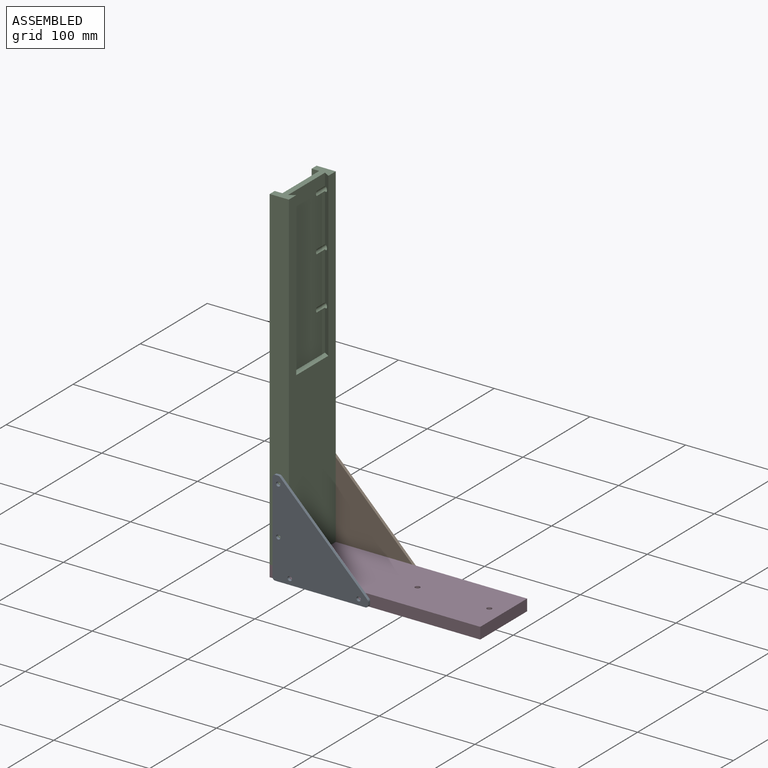
[diagram: assembled view]
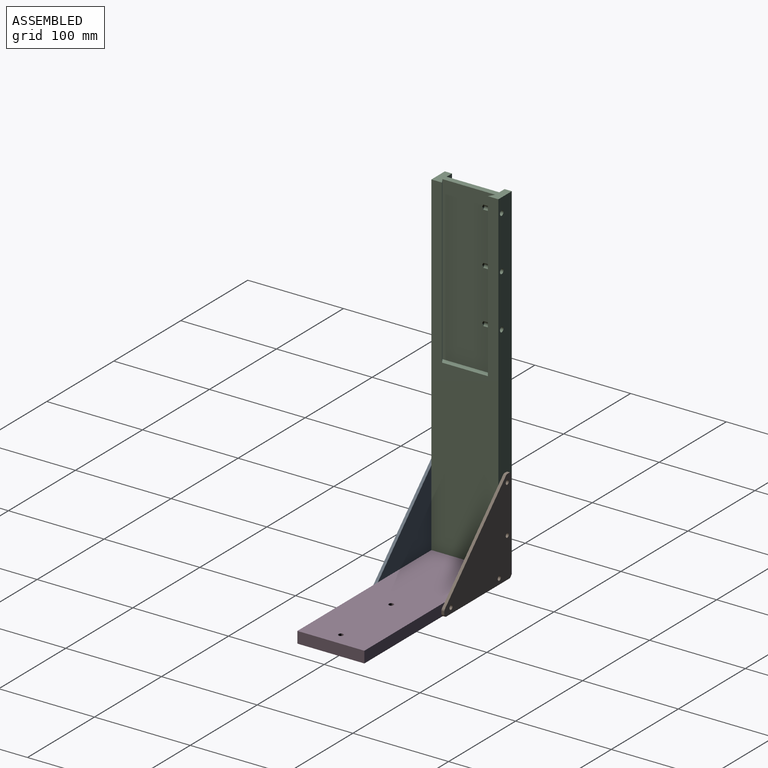
[diagram: assembled view, second angle]
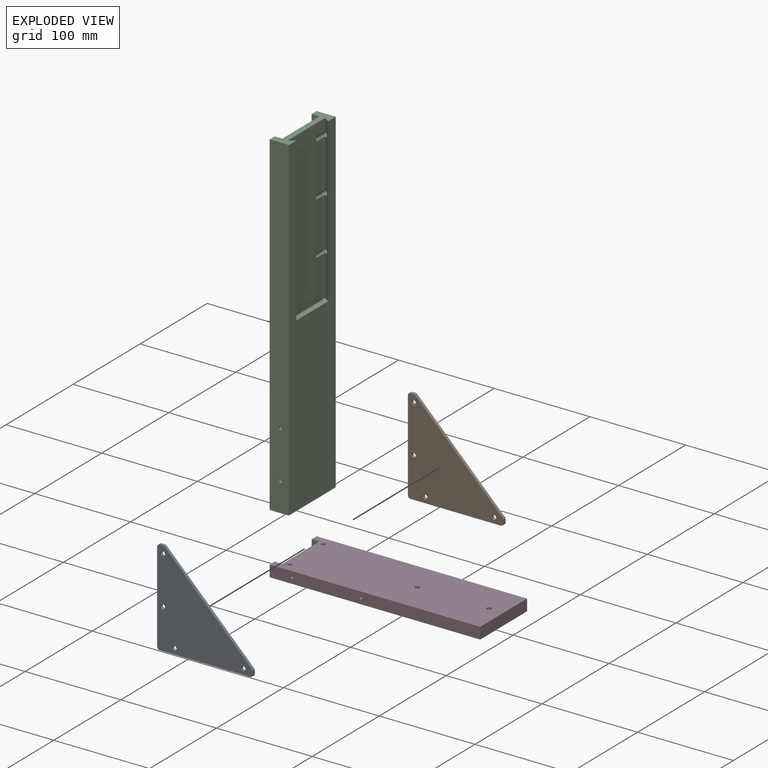
[diagram: exploded view]
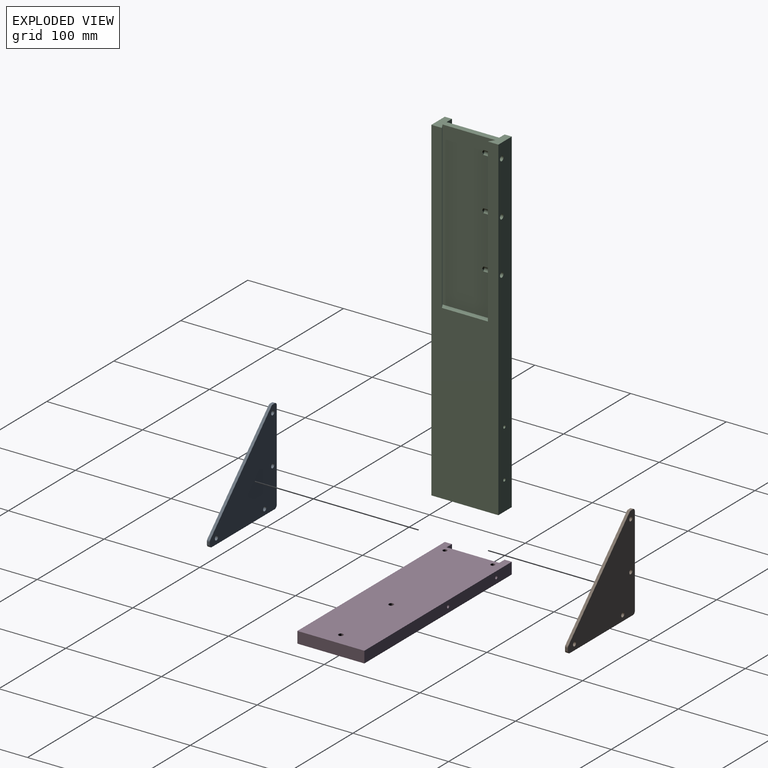
[diagram: exploded view, second angle]
ASSEMBLY  parts=4 mates=3
PART A: 16 faces, bbox 100x100x3 mm
  f0: plane 3x2.76mm, normal (0,1,0), area 8.3mm2, adj f1,f8,f9,f10
  f1: cylinder r=3mm len=3mm, axis (0,0,1), area 14.1mm2, adj f0,f2,f8,f9
  f2: plane 94x3mm, normal (-1,0,0), area 282mm2, adj f1,f3,f8,f9
  f3: cylinder r=3mm len=3mm, axis (0,0,1), area 14.1mm2, adj f2,f4,f8,f9
  f4: plane 94x3mm, normal (0,-1,0), area 282mm2, adj f3,f5,f8,f9
  f5: cylinder r=3mm len=3mm, axis (0,0,1), area 14.1mm2, adj f4,f6,f8,f9
  f6: plane 3x2.76mm, normal (1,0,0), area 8.3mm2, adj f5,f8,f9,f11
  f7: plane 91.24x91.24mm, normal (0.71,0.71,0), area 387.1mm2, adj f8,f9,f10,f11
  f8: plane 100x100mm, normal (0,0,1), area 5605.7mm2, adj f0,f1,f2,f3,f4,f5,f6,f7
  f9: plane 100x100mm, normal (0,0,-1), area 5605.7mm2, adj f0,f1,f2,f3,f4,f5,f6,f7
  f10: cylinder r=3mm len=3mm, axis (0,0,1), area 7.1mm2, adj f0,f7,f8,f9
  f11: cylinder r=3mm len=3mm, axis (0,0,1), area 7.1mm2, adj f6,f7,f8,f9
  f12: cylinder r=2.25mm len=4.5mm, axis (0,0,1), area 42.4mm2, adj f8,f9
  f13: cylinder r=2.25mm len=4.5mm, axis (0,0,1), area 42.4mm2, adj f8,f9
  f14: cylinder r=2.25mm len=4.5mm, axis (0,0,1), area 42.4mm2, adj f8,f9
  f15: cylinder r=2.25mm len=4.5mm, axis (0,0,1), area 42.4mm2, adj f8,f9
PART B: same geometry as A
PART C: 32 faces, bbox 350x70x20 mm
  f0: plane 170x55mm, normal (0,0,1), area 9166.6mm2, adj f2,f8,f24,f25,f26,f27,f28,f29
  f1: plane 350x7.5mm, normal (0,0,-1), area 2625mm2, adj f2,f4,f5,f9
  f2: plane 70x20mm, normal (1,0,0), area 651mm2, adj f0,f1,f3,f4,f6,f7,f9,f10
  f3: plane 350x20mm, normal (0,-1,0), area 6922.6mm2, adj f2,f5,f6,f7,f21,f23,f25,f27
  f4: plane 350x20mm, normal (0,1,0), area 6983.9mm2, adj f1,f2,f5,f6,f17,f19
  f5: plane 70x20mm, normal (-1,0,0), area 943.9mm2, adj f1,f3,f4,f6,f7,f9,f10,f11
  f6: plane 350x70mm, normal (0,0,1), area 16340mm2, adj f2,f3,f4,f5,f8,f30,f31
  f7: plane 350x7.5mm, normal (0,0,-1), area 2625mm2, adj f2,f3,f5,f10
  f8: plane 55x6mm, normal (1,0,0), area 309mm2, adj f0,f6,f30,f31
  f9: plane 350x8mm, normal (0,-1,0), area 2800mm2, adj f1,f2,f5,f11
  f10: plane 350x8mm, normal (0,1,0), area 2800mm2, adj f2,f5,f7,f11
  f11: plane 350x55mm, normal (0,0,-1), area 19250mm2, adj f2,f5,f9,f10
  f12: cone r=0mm half-angle=59deg, axis (-1,0,0), area 9.4mm2, adj f13
  f13: cylinder r=1.6mm len=15mm, axis (-1,0,0), area 150.8mm2, adj f5,f12
  f14: cone r=0mm half-angle=59deg, axis (-1,0,0), area 9.4mm2, adj f15
  f15: cylinder r=1.6mm len=15mm, axis (-1,0,0), area 150.8mm2, adj f5,f14
  f16: cone r=0mm half-angle=59deg, axis (0,1,0), area 9.4mm2, adj f17
  f17: cylinder r=1.6mm len=15mm, axis (0,1,0), area 150.8mm2, adj f4,f16
  f18: cone r=0mm half-angle=59deg, axis (0,1,0), area 9.4mm2, adj f19
  f19: cylinder r=1.6mm len=15mm, axis (0,1,0), area 150.8mm2, adj f4,f18
  f20: cone r=0mm half-angle=59deg, axis (0,-1,0), area 9.4mm2, adj f21
  f21: cylinder r=1.6mm len=15mm, axis (0,-1,0), area 150.8mm2, adj f3,f20
  f22: cone r=0mm half-angle=59deg, axis (0,-1,0), area 9.4mm2, adj f23
  f23: cylinder r=1.6mm len=15mm, axis (0,-1,0), area 150.8mm2, adj f3,f22
  f24: cone r=0mm half-angle=59deg, axis (0,-1,0), area 6.1mm2, adj f0,f25
  f25: cylinder r=2.55mm len=20mm, axis (0,-1,0), area 207.7mm2, adj f0,f3,f24,f30
  f26: cone r=0mm half-angle=59deg, axis (0,-1,0), area 6.1mm2, adj f0,f27
  f27: cylinder r=2.55mm len=20mm, axis (0,-1,0), area 207.7mm2, adj f0,f3,f26,f30
  f28: cone r=0mm half-angle=59deg, axis (0,-1,0), area 6.1mm2, adj f0,f29
  f29: cylinder r=2.55mm len=20mm, axis (0,-1,0), area 207.7mm2, adj f0,f3,f28,f30
  f30: plane 170x6mm, normal (0,0.87,-0.5), area 1125.2mm2, adj f0,f2,f6,f8,f25,f27,f29
  f31: plane 170x6mm, normal (0,-0.86,-0.51), area 1183.9mm2, adj f0,f2,f6,f8
PART D: 26 faces, bbox 220x70x12 mm
  f0: cylinder r=2.25mm len=8mm, axis (0,0,-1), area 113.1mm2, adj f10,f15
  f1: cylinder r=2.25mm len=8mm, axis (0,0,-1), area 113.1mm2, adj f10,f13
  f2: plane 220x12mm, normal (0,-1,0), area 2623.9mm2, adj f3,f9,f10,f11,f23,f25
  f3: plane 70x12mm, normal (1,0,0), area 840mm2, adj f2,f4,f10,f11
  f4: plane 220x12mm, normal (0,1,0), area 2623.9mm2, adj f3,f5,f10,f11,f19,f21
  f5: plane 12x7.5mm, normal (-1,0,0), area 90mm2, adj f4,f6,f10,f11
  f6: plane 12x8mm, normal (0,-1,0), area 96mm2, adj f5,f7,f10,f11
  f7: plane 55x12mm, normal (-1,0,0), area 660mm2, adj f6,f8,f10,f11
  f8: plane 12x8mm, normal (0,1,0), area 96mm2, adj f7,f9,f10,f11
  f9: plane 12x7.5mm, normal (-1,0,0), area 90mm2, adj f2,f8,f10,f11
  f10: plane 220x70mm, normal (0,0,1), area 14887.3mm2, adj f0,f1,f2,f3,f4,f5,f6,f7
  f11: plane 220x70mm, normal (0,0,-1), area 14818.6mm2, adj f2,f3,f4,f5,f6,f7,f8,f9
  f12: cylinder r=4mm len=8mm, axis (0,0,-1), area 100.5mm2, adj f11,f13
  f13: plane 8x8mm, normal (0,0,-1), area 34.4mm2, adj f1,f12
  f14: cylinder r=4mm len=8mm, axis (0,0,-1), area 100.5mm2, adj f11,f15
  f15: plane 8x8mm, normal (0,0,-1), area 34.4mm2, adj f0,f14
  f16: cylinder r=2.55mm len=12mm, axis (0,0,-1), area 192.3mm2, adj f10,f11
  f17: cylinder r=2.55mm len=12mm, axis (0,0,-1), area 192.3mm2, adj f10,f11
  f18: cone r=0mm half-angle=59deg, axis (0,1,0), area 9.4mm2, adj f19
  f19: cylinder r=1.6mm len=15mm, axis (0,1,0), area 150.8mm2, adj f4,f18
  f20: cone r=0mm half-angle=59deg, axis (0,1,0), area 9.4mm2, adj f21
  f21: cylinder r=1.6mm len=15mm, axis (0,1,0), area 150.8mm2, adj f4,f20
  f22: cone r=0mm half-angle=59deg, axis (0,-1,0), area 9.4mm2, adj f23
  f23: cylinder r=1.6mm len=15mm, axis (0,-1,0), area 150.8mm2, adj f2,f22
  f24: cone r=0mm half-angle=59deg, axis (0,-1,0), area 9.4mm2, adj f25
  f25: cylinder r=1.6mm len=15mm, axis (0,-1,0), area 150.8mm2, adj f2,f24
PLACE A rot(axis=(-0.58,-0.58,-0.58),120deg) t=(-75,-38,50)mm
PLACE B rot(axis=(-0.58,-0.58,-0.58),120deg) t=(-75,35,50)mm
PLACE C rot(axis=(0.71,0,0.71),180deg) t=(-130,0,187)mm
PLACE D t=(-20,0,0)mm
MATE fastened C.f14 <-> D.f0  axis (0,0,-1) through (-116,25,12)mm
MATE fastened B.f15 <-> D.f18  axis (0,-1,0) through (-35,35,6)mm
MATE fastened D.f18 <-> A.f15  axis (0,-1,0) through (-35,-35,6)mm
